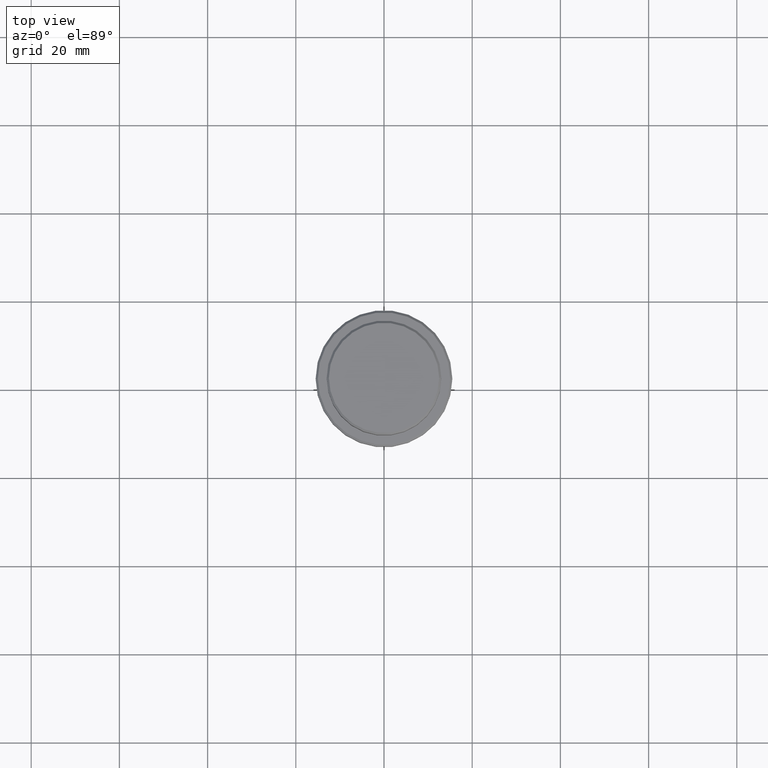
[diagram: clean part render]
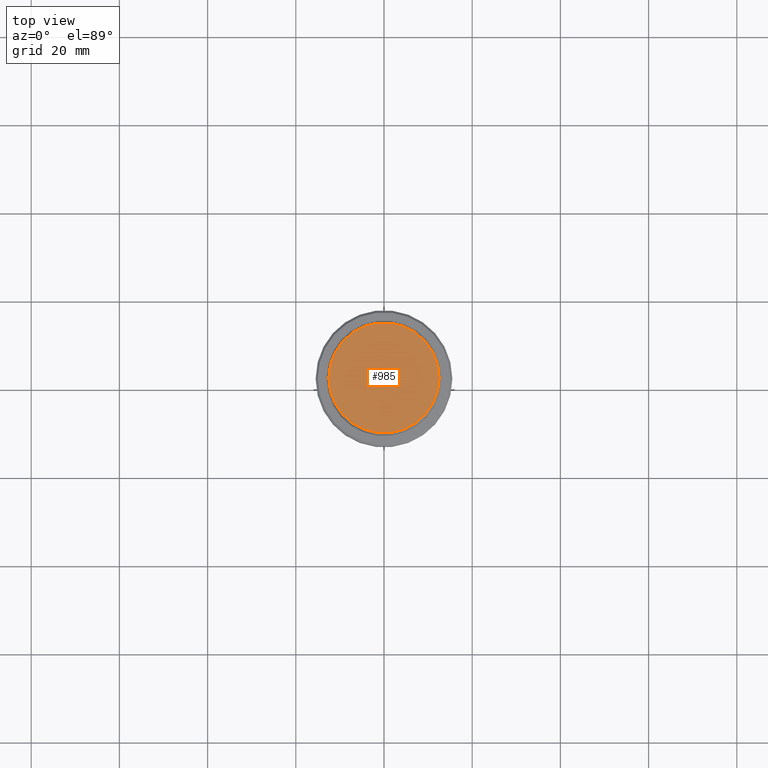
[diagram: same view with one face highlighted and labeled with its STEP entity id]
A machine part, top view. The second image highlights one B-rep face of the part: STEP entity #985.
In plain terms, the highlighted planar face has unit normal (0, -0, 1).
Its self-contained STEP definition (entity closure, byte-faithful):
#196 = EDGE_CURVE ( 'NONE', #665, #1113, #971, .T. ) ;
#295 = DIRECTION ( 'NONE',  ( -0.000000000000000000, -0.000000000000000000, 1.000000000000000000 ) ) ;
#313 = CARTESIAN_POINT ( 'NONE',  ( 12.50000000000004086, 1.561424668912877675E-15, 0.000000000000000000 ) ) ;
#398 = DIRECTION ( 'NONE',  ( -0.000000000000000000, -0.000000000000000000, 1.000000000000000000 ) ) ;
#468 = ORIENTED_EDGE ( 'NONE', *, *, #196, .T. ) ;
#543 = EDGE_CURVE ( 'NONE', #1113, #665, #1090, .T. ) ;
#665 = VERTEX_POINT ( 'NONE', #868 ) ;
#721 = CARTESIAN_POINT ( 'NONE',  ( 0.000000000000000000, 0.000000000000000000, 0.000000000000000000 ) ) ;
#729 = FACE_OUTER_BOUND ( 'NONE', #1327, .T. ) ;
#730 = CARTESIAN_POINT ( 'NONE',  ( 0.000000000000000000, 0.000000000000000000, 0.000000000000000000 ) ) ;
#826 = DIRECTION ( 'NONE',  ( 1.000000000000000000, 0.000000000000000000, 0.000000000000000000 ) ) ;
#833 = AXIS2_PLACEMENT_3D ( 'NONE', #1376, #398, #1270 ) ;
#868 = CARTESIAN_POINT ( 'NONE',  ( -12.50000000000004086, 0.000000000000000000, 0.000000000000000000 ) ) ;
#971 = CIRCLE ( 'NONE', #833, 12.50000000000004086 ) ;
#985 = ADVANCED_FACE ( 'NONE', ( #729 ), #1166, .T. ) ;
#1025 = DIRECTION ( 'NONE',  ( 0.000000000000000000, -0.000000000000000000, 1.000000000000000000 ) ) ;
#1029 = ORIENTED_EDGE ( 'NONE', *, *, #543, .T. ) ;
#1068 = AXIS2_PLACEMENT_3D ( 'NONE', #721, #1025, #1254 ) ;
#1090 = CIRCLE ( 'NONE', #1343, 12.50000000000004086 ) ;
#1113 = VERTEX_POINT ( 'NONE', #313 ) ;
#1166 = PLANE ( 'NONE',  #1068 ) ;
#1254 = DIRECTION ( 'NONE',  ( 1.000000000000000000, 0.000000000000000000, 0.000000000000000000 ) ) ;
#1270 = DIRECTION ( 'NONE',  ( 1.000000000000000000, 0.000000000000000000, 0.000000000000000000 ) ) ;
#1327 = EDGE_LOOP ( 'NONE', ( #468, #1029 ) ) ;
#1343 = AXIS2_PLACEMENT_3D ( 'NONE', #730, #295, #826 ) ;
#1376 = CARTESIAN_POINT ( 'NONE',  ( 0.000000000000000000, 0.000000000000000000, 0.000000000000000000 ) ) ;